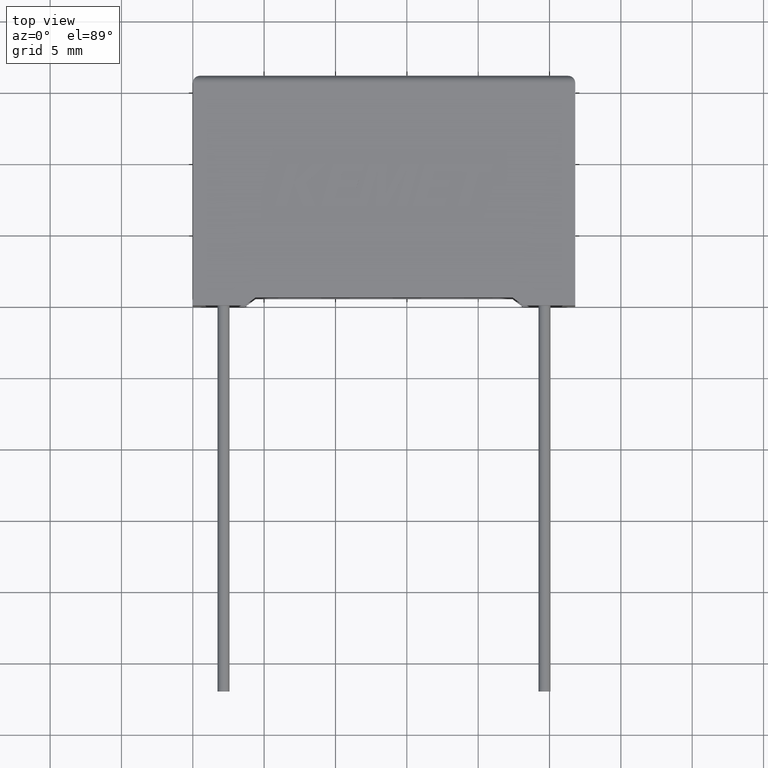
[diagram: clean part render]
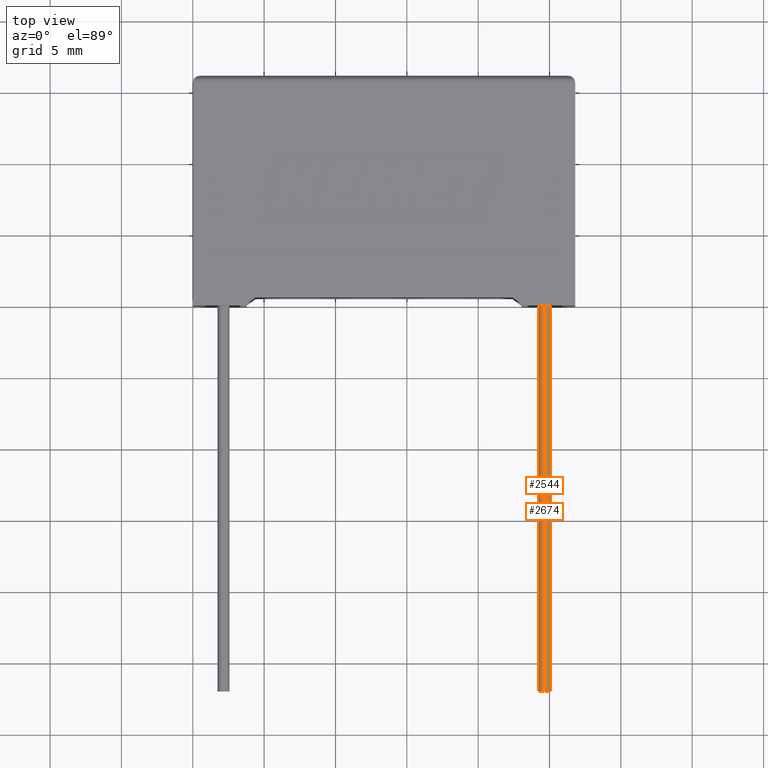
[diagram: same view with one multi-face feature highlighted, each face labeled with its STEP entity id]
A machine part, top view. The highlighted faces form ONE feature: a constant-radius fillet chain: 2 tangent blend faces with common blend radius 0.425 mm. The faces share edges in the B-rep.
Their STEP definitions:
[1] entity #2544 (Cylinder):
#31 = DIRECTION ( 'NONE',  ( 0.0000000000000000000, -1.000000000000000000, 0.0000000000000000000 ) ) ;
#174 = DIRECTION ( 'NONE',  ( 0.0000000000000000000, 0.0000000000000000000, -1.000000000000000000 ) ) ;
#195 = EDGE_CURVE ( 'NONE', #3000, #3043, #2514, .T. ) ;
#363 = EDGE_CURVE ( 'NONE', #2696, #2880, #1321, .T. ) ;
#425 = DIRECTION ( 'NONE',  ( 0.0000000000000000000, 0.0000000000000000000, 1.000000000000000000 ) ) ;
#672 = ORIENTED_EDGE ( 'NONE', *, *, #195, .F. ) ;
#794 = EDGE_LOOP ( 'NONE', ( #672, #1964, #965, #2759 ) ) ;
#965 = ORIENTED_EDGE ( 'NONE', *, *, #363, .T. ) ;
#1110 = DIRECTION ( 'NONE',  ( -0.0000000000000000000, 1.000000000000000000, -0.0000000000000000000 ) ) ;
#1193 = CARTESIAN_POINT ( 'NONE',  ( 24.64999999999999900, -27.00000000000000000, 4.025000000000000400 ) ) ;
#1197 = CARTESIAN_POINT ( 'NONE',  ( 24.64999999999999900, 0.7500000000000006700, 3.600000000000000100 ) ) ;
#1307 = EDGE_CURVE ( 'NONE', #3000, #2696, #2168, .T. ) ;
#1321 = LINE ( 'NONE', #1193, #2509 ) ;
#1332 = CARTESIAN_POINT ( 'NONE',  ( 24.64999999999999900, -27.00000000000000000, 3.174999999999999800 ) ) ;
#1400 = DIRECTION ( 'NONE',  ( -0.0000000000000000000, 1.000000000000000000, -0.0000000000000000000 ) ) ;
#1450 = AXIS2_PLACEMENT_3D ( 'NONE', #3001, #1596, #174 ) ;
#1596 = DIRECTION ( 'NONE',  ( -0.0000000000000000000, 1.000000000000000000, -0.0000000000000000000 ) ) ;
#1727 = CYLINDRICAL_SURFACE ( 'NONE', #2764, 0.4250000000000000400 ) ;
#1821 = AXIS2_PLACEMENT_3D ( 'NONE', #1197, #31, #1925 ) ;
#1925 = DIRECTION ( 'NONE',  ( 0.0000000000000000000, 0.0000000000000000000, -1.000000000000000000 ) ) ;
#1946 = EDGE_CURVE ( 'NONE', #2880, #3043, #2918, .T. ) ;
#1964 = ORIENTED_EDGE ( 'NONE', *, *, #1307, .T. ) ;
#2168 = CIRCLE ( 'NONE', #1450, 0.4250000000000000400 ) ;
#2253 = DIRECTION ( 'NONE',  ( -0.0000000000000000000, 1.000000000000000000, -0.0000000000000000000 ) ) ;
#2283 = CARTESIAN_POINT ( 'NONE',  ( 24.64999999999999900, -27.00000000000000000, 3.600000000000000100 ) ) ;
#2289 = VECTOR ( 'NONE', #2253, 1000.000000000000000 ) ;
#2333 = CARTESIAN_POINT ( 'NONE',  ( 24.64999999999999900, 0.7500000000000006700, 4.025000000000000400 ) ) ;
#2395 = FACE_OUTER_BOUND ( 'NONE', #794, .T. ) ;
#2485 = CARTESIAN_POINT ( 'NONE',  ( 24.64999999999999900, -27.00000000000000000, 3.174999999999999800 ) ) ;
#2509 = VECTOR ( 'NONE', #1400, 1000.000000000000000 ) ;
#2514 = LINE ( 'NONE', #2485, #2289 ) ;
#2544 = ADVANCED_FACE ( 'NONE', ( #2395 ), #1727, .T. ) ;
#2676 = CARTESIAN_POINT ( 'NONE',  ( 24.64999999999999900, -27.00000000000000000, 4.025000000000000400 ) ) ;
#2696 = VERTEX_POINT ( 'NONE', #2676 ) ;
#2759 = ORIENTED_EDGE ( 'NONE', *, *, #1946, .T. ) ;
#2764 = AXIS2_PLACEMENT_3D ( 'NONE', #2283, #1110, #425 ) ;
#2778 = CARTESIAN_POINT ( 'NONE',  ( 24.64999999999999900, 0.7500000000000006700, 3.174999999999999800 ) ) ;
#2880 = VERTEX_POINT ( 'NONE', #2333 ) ;
#2918 = CIRCLE ( 'NONE', #1821, 0.4250000000000000400 ) ;
#3000 = VERTEX_POINT ( 'NONE', #1332 ) ;
#3001 = CARTESIAN_POINT ( 'NONE',  ( 24.64999999999999900, -27.00000000000000000, 3.600000000000000100 ) ) ;
#3043 = VERTEX_POINT ( 'NONE', #2778 ) ;
[2] entity #2674 (Cylinder):
#195 = EDGE_CURVE ( 'NONE', #3000, #3043, #2514, .T. ) ;
#219 = ORIENTED_EDGE ( 'NONE', *, *, #1157, .T. ) ;
#363 = EDGE_CURVE ( 'NONE', #2696, #2880, #1321, .T. ) ;
#381 = CYLINDRICAL_SURFACE ( 'NONE', #1915, 0.4250000000000000400 ) ;
#482 = DIRECTION ( 'NONE',  ( 0.0000000000000000000, 0.0000000000000000000, -1.000000000000000000 ) ) ;
#680 = ORIENTED_EDGE ( 'NONE', *, *, #797, .T. ) ;
#749 = CARTESIAN_POINT ( 'NONE',  ( 24.64999999999999900, -27.00000000000000000, 3.600000000000000100 ) ) ;
#761 = CIRCLE ( 'NONE', #803, 0.4250000000000000400 ) ;
#793 = CARTESIAN_POINT ( 'NONE',  ( 24.64999999999999900, -27.00000000000000000, 3.600000000000000100 ) ) ;
#797 = EDGE_CURVE ( 'NONE', #2696, #3000, #761, .T. ) ;
#803 = AXIS2_PLACEMENT_3D ( 'NONE', #749, #1664, #482 ) ;
#828 = EDGE_LOOP ( 'NONE', ( #680, #2491, #219, #1243 ) ) ;
#1135 = CIRCLE ( 'NONE', #2130, 0.4250000000000000400 ) ;
#1157 = EDGE_CURVE ( 'NONE', #3043, #2880, #1135, .T. ) ;
#1193 = CARTESIAN_POINT ( 'NONE',  ( 24.64999999999999900, -27.00000000000000000, 4.025000000000000400 ) ) ;
#1232 = DIRECTION ( 'NONE',  ( -0.0000000000000000000, 1.000000000000000000, -0.0000000000000000000 ) ) ;
#1243 = ORIENTED_EDGE ( 'NONE', *, *, #363, .F. ) ;
#1321 = LINE ( 'NONE', #1193, #2509 ) ;
#1332 = CARTESIAN_POINT ( 'NONE',  ( 24.64999999999999900, -27.00000000000000000, 3.174999999999999800 ) ) ;
#1400 = DIRECTION ( 'NONE',  ( -0.0000000000000000000, 1.000000000000000000, -0.0000000000000000000 ) ) ;
#1574 = DIRECTION ( 'NONE',  ( 0.0000000000000000000, -1.000000000000000000, 0.0000000000000000000 ) ) ;
#1664 = DIRECTION ( 'NONE',  ( -0.0000000000000000000, 1.000000000000000000, -0.0000000000000000000 ) ) ;
#1915 = AXIS2_PLACEMENT_3D ( 'NONE', #793, #1232, #2663 ) ;
#2130 = AXIS2_PLACEMENT_3D ( 'NONE', #2554, #1574, #3015 ) ;
#2253 = DIRECTION ( 'NONE',  ( -0.0000000000000000000, 1.000000000000000000, -0.0000000000000000000 ) ) ;
#2289 = VECTOR ( 'NONE', #2253, 1000.000000000000000 ) ;
#2333 = CARTESIAN_POINT ( 'NONE',  ( 24.64999999999999900, 0.7500000000000006700, 4.025000000000000400 ) ) ;
#2485 = CARTESIAN_POINT ( 'NONE',  ( 24.64999999999999900, -27.00000000000000000, 3.174999999999999800 ) ) ;
#2491 = ORIENTED_EDGE ( 'NONE', *, *, #195, .T. ) ;
#2509 = VECTOR ( 'NONE', #1400, 1000.000000000000000 ) ;
#2514 = LINE ( 'NONE', #2485, #2289 ) ;
#2554 = CARTESIAN_POINT ( 'NONE',  ( 24.64999999999999900, 0.7500000000000006700, 3.600000000000000100 ) ) ;
#2663 = DIRECTION ( 'NONE',  ( 0.0000000000000000000, 0.0000000000000000000, 1.000000000000000000 ) ) ;
#2665 = FACE_OUTER_BOUND ( 'NONE', #828, .T. ) ;
#2674 = ADVANCED_FACE ( 'NONE', ( #2665 ), #381, .T. ) ;
#2676 = CARTESIAN_POINT ( 'NONE',  ( 24.64999999999999900, -27.00000000000000000, 4.025000000000000400 ) ) ;
#2696 = VERTEX_POINT ( 'NONE', #2676 ) ;
#2778 = CARTESIAN_POINT ( 'NONE',  ( 24.64999999999999900, 0.7500000000000006700, 3.174999999999999800 ) ) ;
#2880 = VERTEX_POINT ( 'NONE', #2333 ) ;
#3000 = VERTEX_POINT ( 'NONE', #1332 ) ;
#3015 = DIRECTION ( 'NONE',  ( 0.0000000000000000000, 0.0000000000000000000, -1.000000000000000000 ) ) ;
#3043 = VERTEX_POINT ( 'NONE', #2778 ) ;